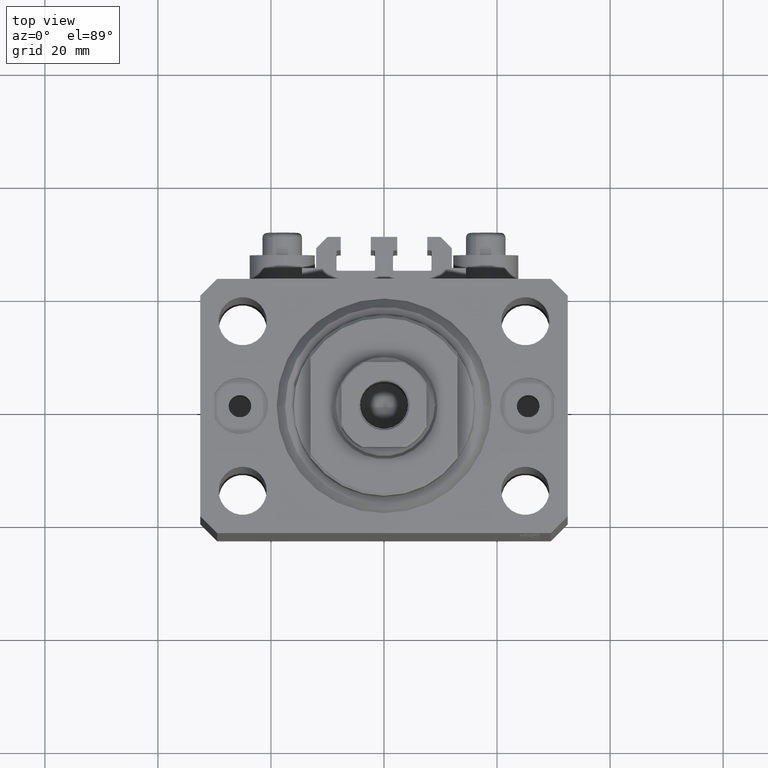
[diagram: clean part render]
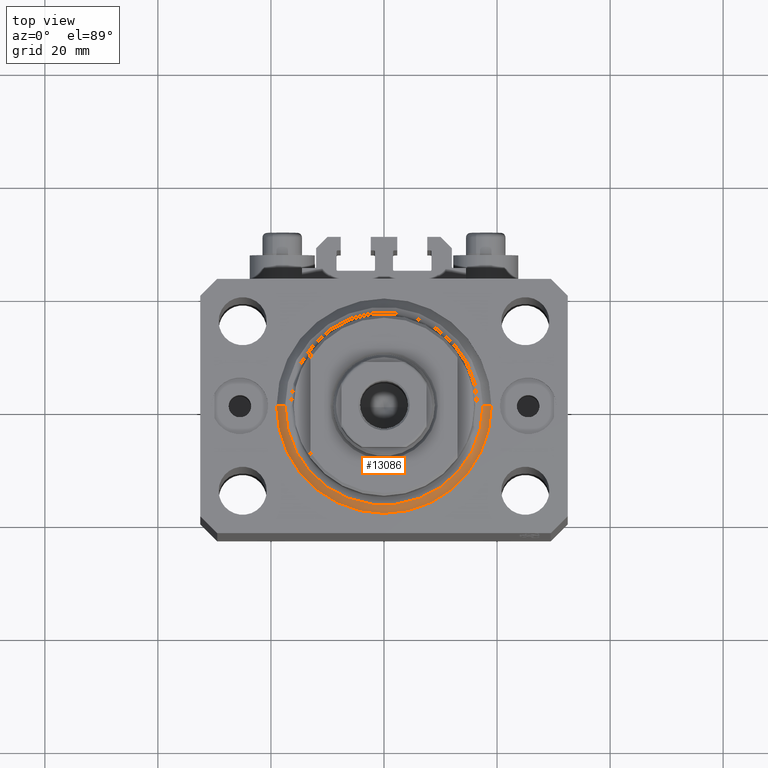
[diagram: same view with one face highlighted and labeled with its STEP entity id]
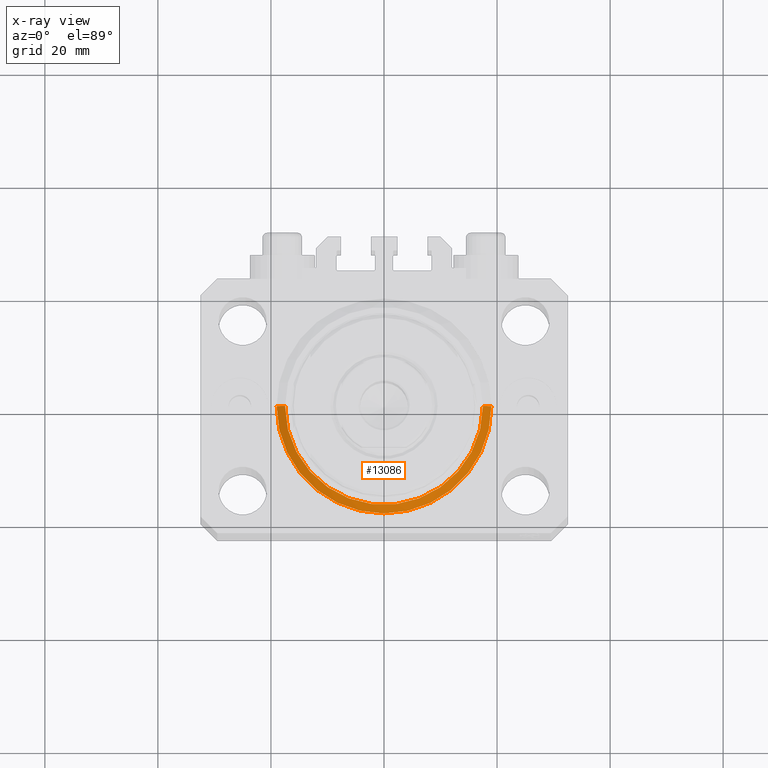
[diagram: x-ray of the same camera — body ghosted, the highlighted face saturated]
A machine part, top view. The second image highlights one B-rep face of the part: STEP entity #13086.
The next image is the same camera in x-ray: the body ghosted, the highlighted face saturated — about 0% of this face is hidden behind the body in this view.
In plain terms, the highlighted conical surface has half-angle 45 deg.
Its self-contained STEP definition (entity closure, byte-faithful):
#44 = LINE ( 'NONE', #14606, #28066 ) ;
#6368 = EDGE_CURVE ( 'NONE', #30617, #31309, #44, .T. ) ;
#8649 = EDGE_CURVE ( 'NONE', #31309, #37897, #28222, .T. ) ;
#8999 = DIRECTION ( 'NONE',  ( -0.000000000000000000, -0.000000000000000000, 1.000000000000000000 ) ) ;
#10303 = CARTESIAN_POINT ( 'NONE',  ( 19.00000000000000000, 2.326828918379970970E-15, 1.500000000000004885 ) ) ;
#11365 = CARTESIAN_POINT ( 'NONE',  ( -17.49999999999999289, 2.234980408443919215E-15, 0.000000000000000000 ) ) ;
#12269 = AXIS2_PLACEMENT_3D ( 'NONE', #28479, #46624, #32296 ) ;
#12876 = AXIS2_PLACEMENT_3D ( 'NONE', #14790, #25514, #18830 ) ;
#13086 = ADVANCED_FACE ( 'NONE', ( #13495 ), #23066, .T. ) ;
#13495 = FACE_OUTER_BOUND ( 'NONE', #35342, .T. ) ;
#13647 = DIRECTION ( 'NONE',  ( -0.7071067811865483499, 8.659560562354943952E-17, 0.7071067811865467956 ) ) ;
#14310 = ORIENTED_EDGE ( 'NONE', *, *, #46837, .F. ) ;
#14606 = CARTESIAN_POINT ( 'NONE',  ( -19.00000000000000000, 2.326828918379970970E-15, 1.500000000000004885 ) ) ;
#14790 = CARTESIAN_POINT ( 'NONE',  ( 0.000000000000000000, 0.000000000000000000, 0.000000000000000000 ) ) ;
#16472 = DIRECTION ( 'NONE',  ( 0.7071067811865483499, 0.000000000000000000, 0.7071067811865467956 ) ) ;
#17166 = VERTEX_POINT ( 'NONE', #18136 ) ;
#18136 = CARTESIAN_POINT ( 'NONE',  ( 17.49999999999999289, 0.000000000000000000, 0.000000000000000000 ) ) ;
#18830 = DIRECTION ( 'NONE',  ( 1.000000000000000000, 0.000000000000000000, 0.000000000000000000 ) ) ;
#19575 = LINE ( 'NONE', #38431, #23447 ) ;
#22781 = CIRCLE ( 'NONE', #12876, 17.49999999999999289 ) ;
#23066 = CONICAL_SURFACE ( 'NONE', #32993, 19.00000000000000000, 0.7853981633974492782 ) ;
#23447 = VECTOR ( 'NONE', #16472, 1000.000000000000000 ) ;
#24112 = ORIENTED_EDGE ( 'NONE', *, *, #45313, .T. ) ;
#25092 = ORIENTED_EDGE ( 'NONE', *, *, #6368, .F. ) ;
#25514 = DIRECTION ( 'NONE',  ( -0.000000000000000000, -0.000000000000000000, -1.000000000000000000 ) ) ;
#27112 = CARTESIAN_POINT ( 'NONE',  ( 0.000000000000000000, 0.000000000000000000, 1.500000000000004885 ) ) ;
#28066 = VECTOR ( 'NONE', #13647, 1000.000000000000000 ) ;
#28222 = CIRCLE ( 'NONE', #12269, 19.00000000000000000 ) ;
#28479 = CARTESIAN_POINT ( 'NONE',  ( 0.000000000000000000, 0.000000000000000000, 1.500000000000004885 ) ) ;
#30617 = VERTEX_POINT ( 'NONE', #11365 ) ;
#31309 = VERTEX_POINT ( 'NONE', #46028 ) ;
#32296 = DIRECTION ( 'NONE',  ( 1.000000000000000000, 0.000000000000000000, 0.000000000000000000 ) ) ;
#32993 = AXIS2_PLACEMENT_3D ( 'NONE', #27112, #8999, #42135 ) ;
#35342 = EDGE_LOOP ( 'NONE', ( #25092, #14310, #24112, #44544 ) ) ;
#37897 = VERTEX_POINT ( 'NONE', #10303 ) ;
#38431 = CARTESIAN_POINT ( 'NONE',  ( 19.00000000000000000, 0.000000000000000000, 1.500000000000004885 ) ) ;
#42135 = DIRECTION ( 'NONE',  ( 1.000000000000000000, 0.000000000000000000, 0.000000000000000000 ) ) ;
#44544 = ORIENTED_EDGE ( 'NONE', *, *, #8649, .F. ) ;
#45313 = EDGE_CURVE ( 'NONE', #17166, #37897, #19575, .T. ) ;
#46028 = CARTESIAN_POINT ( 'NONE',  ( -19.00000000000000000, 0.000000000000000000, 1.500000000000004885 ) ) ;
#46624 = DIRECTION ( 'NONE',  ( -0.000000000000000000, -0.000000000000000000, 1.000000000000000000 ) ) ;
#46837 = EDGE_CURVE ( 'NONE', #17166, #30617, #22781, .T. ) ;